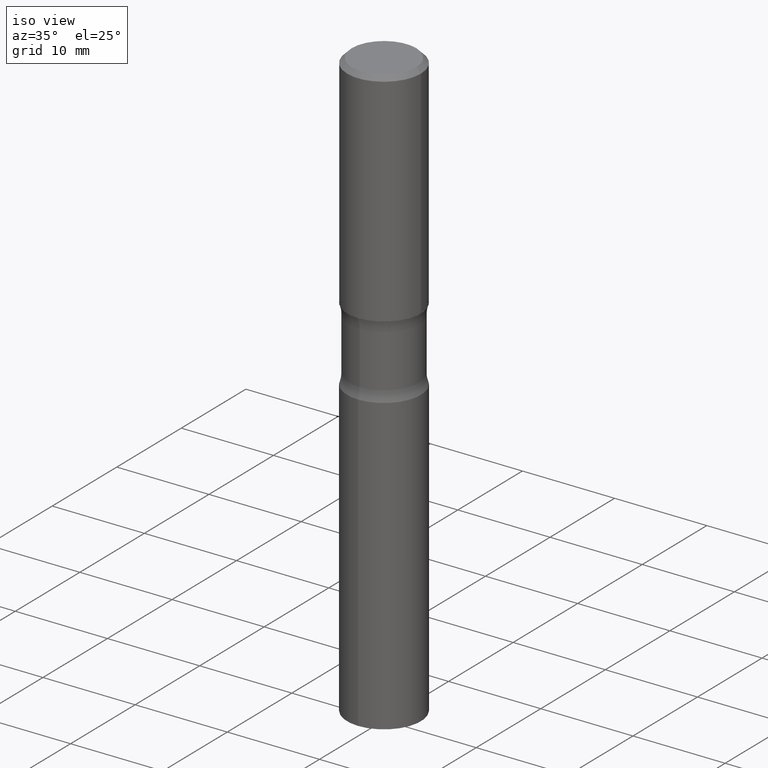
[diagram: clean part render]
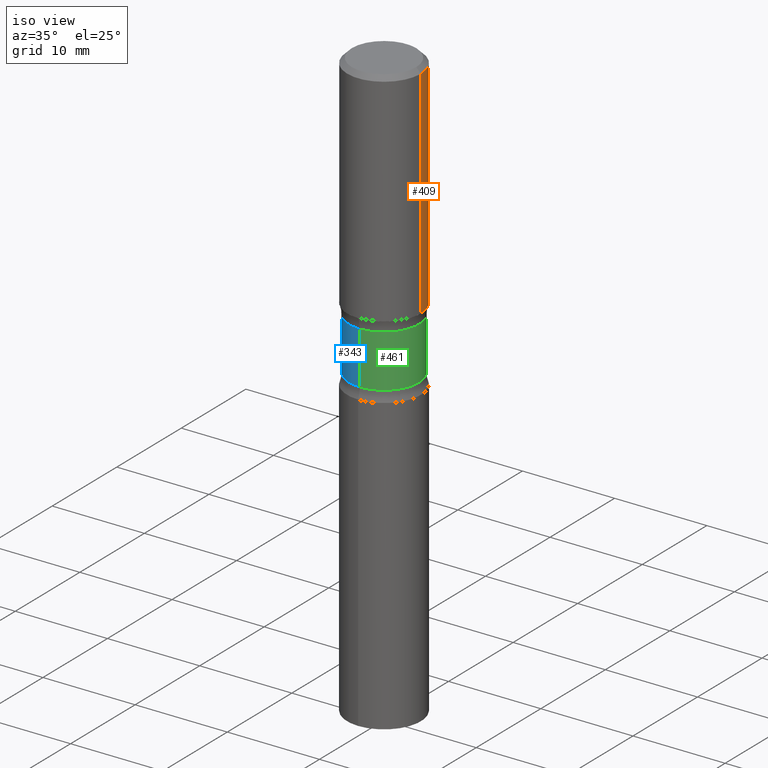
[diagram: same view with three faces highlighted in distinct colors, each labeled with its STEP entity id]
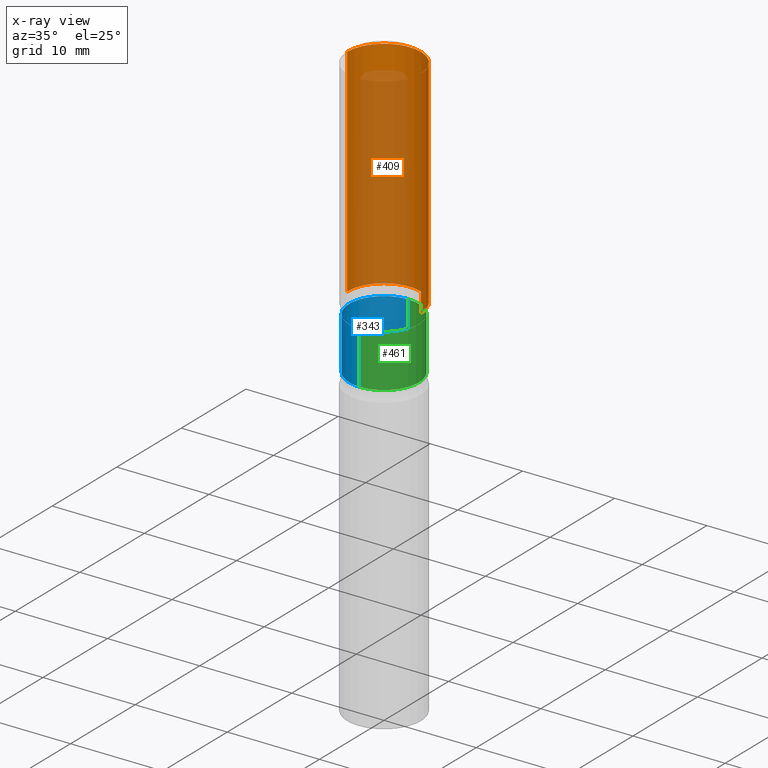
[diagram: x-ray of the same camera — body ghosted, the three highlighted faces saturated]
A machine part, iso view with three faces highlighted in distinct colors.
The next image is the same camera in x-ray (body ghosted, the three faces saturated) — at least one of them is partly hidden behind the body in this view.
Their STEP definitions:

[orange] entity #409 — the highlighted cylindrical surface (partial cylindrical patch) has radius 4.0005 mm, axis along (-0, 0, 1).
#3 = CARTESIAN_POINT ( 'NONE',  ( 0.000000000000000000, 0.000000000000000000, 0.000000000000000000 ) ) ;
#7 = FACE_OUTER_BOUND ( 'NONE', #183, .T. ) ;
#8 = EDGE_CURVE ( 'NONE', #312, #109, #9, .T. ) ;
#9 = CIRCLE ( 'NONE', #289, 0.1575000000000000011 ) ;
#16 = CARTESIAN_POINT ( 'NONE',  ( -0.1574999999999999178, 1.119104808822157209E-15, -7.747322767151472781E-30 ) ) ;
#18 = AXIS2_PLACEMENT_3D ( 'NONE', #3, #149, #310 ) ;
#33 = ORIENTED_EDGE ( 'NONE', *, *, #336, .F. ) ;
#59 = LINE ( 'NONE', #16, #500 ) ;
#60 = CARTESIAN_POINT ( 'NONE',  ( 0.1574999999999999178, -1.099816621735586494E-15, 7.679978421878595230E-30 ) ) ;
#79 = EDGE_CURVE ( 'NONE', #109, #337, #59, .T. ) ;
#85 = CARTESIAN_POINT ( 'NONE',  ( 2.310723474964335154E-29, -3.299100717072887606E-15, -0.9448999999999998511 ) ) ;
#88 = CARTESIAN_POINT ( 'NONE',  ( 4.890937612370281041E-31, -6.982962677686302702E-17, -0.02000000000000003511 ) ) ;
#109 = VERTEX_POINT ( 'NONE', #290 ) ;
#112 = ORIENTED_EDGE ( 'NONE', *, *, #481, .F. ) ;
#131 = CARTESIAN_POINT ( 'NONE',  ( 0.1574999999999998623, -1.150358061425878289E-15, -0.02000000000000003511 ) ) ;
#149 = DIRECTION ( 'NONE',  ( -2.445468806185136597E-29, 3.491481338843145583E-15, 1.000000000000000000 ) ) ;
#183 = EDGE_LOOP ( 'NONE', ( #256, #396, #33, #112 ) ) ;
#185 = DIRECTION ( 'NONE',  ( -2.445468806185136597E-29, 3.491481338843145583E-15, 1.000000000000000000 ) ) ;
#196 = DIRECTION ( 'NONE',  ( -2.445468806185136597E-29, 3.491481338843145583E-15, 1.000000000000000000 ) ) ;
#200 = DIRECTION ( 'NONE',  ( -2.445468806185136877E-29, 3.491481338843145188E-15, 1.000000000000000000 ) ) ;
#206 = DIRECTION ( 'NONE',  ( -2.445468806185136877E-29, 3.491481338843145188E-15, 1.000000000000000000 ) ) ;
#232 = DIRECTION ( 'NONE',  ( 1.000000000000000000, -6.982962677686266711E-15, 0.000000000000000000 ) ) ;
#240 = LINE ( 'NONE', #60, #505 ) ;
#256 = ORIENTED_EDGE ( 'NONE', *, *, #8, .T. ) ;
#274 = DIRECTION ( 'NONE',  ( 1.000000000000000000, -6.982962677686268288E-15, 0.000000000000000000 ) ) ;
#289 = AXIS2_PLACEMENT_3D ( 'NONE', #85, #196, #274 ) ;
#290 = CARTESIAN_POINT ( 'NONE',  ( -0.1575000000000000011, -5.653603631027165669E-16, -0.9448999999999998511 ) ) ;
#294 = VERTEX_POINT ( 'NONE', #131 ) ;
#310 = DIRECTION ( 'NONE',  ( 1.000000000000000000, -6.982962677686266711E-15, 4.876176775795935793E-29 ) ) ;
#312 = VERTEX_POINT ( 'NONE', #376 ) ;
#336 = EDGE_CURVE ( 'NONE', #294, #337, #478, .T. ) ;
#337 = VERTEX_POINT ( 'NONE', #487 ) ;
#376 = CARTESIAN_POINT ( 'NONE',  ( 0.1575000000000000011, -4.398917338808475087E-15, -0.9448999999999998511 ) ) ;
#394 = AXIS2_PLACEMENT_3D ( 'NONE', #88, #185, #232 ) ;
#396 = ORIENTED_EDGE ( 'NONE', *, *, #79, .T. ) ;
#409 = ADVANCED_FACE ( 'NONE', ( #7 ), #485, .T. ) ;
#478 = CIRCLE ( 'NONE', #394, 0.1574999999999998623 ) ;
#481 = EDGE_CURVE ( 'NONE', #312, #294, #240, .T. ) ;
#485 = CYLINDRICAL_SURFACE ( 'NONE', #18, 0.1574999999999999178 ) ;
#487 = CARTESIAN_POINT ( 'NONE',  ( -0.1574999999999998623, 1.029986994958722999E-15, -0.02000000000000003511 ) ) ;
#500 = VECTOR ( 'NONE', #200, 39.37007874015748143 ) ;
#505 = VECTOR ( 'NONE', #206, 39.37007874015748143 ) ;

[blue] entity #343 — the highlighted cylindrical surface (partial cylindrical patch) has radius 3.7846 mm, axis along (0, -0, -1).
#6 = AXIS2_PLACEMENT_3D ( 'NONE', #93, #446, #86 ) ;
#15 = CARTESIAN_POINT ( 'NONE',  ( 2.966320567988407078E-29, -4.246352965193348549E-15, -1.214592715817431445 ) ) ;
#30 = CARTESIAN_POINT ( 'NONE',  ( -1.022214201667896631E-15, -0.1490000000000088198, -2.519699999999999385 ) ) ;
#75 = VECTOR ( 'NONE', #127, 39.37007874015748143 ) ;
#77 = ORIENTED_EDGE ( 'NONE', *, *, #493, .F. ) ;
#86 = DIRECTION ( 'NONE',  ( 6.982962677686265922E-15, 1.000000000000000000, -3.666910058609747285E-15 ) ) ;
#91 = CARTESIAN_POINT ( 'NONE',  ( -1.051371318158463896E-15, -0.1490000000000034908, -0.9902072841825673155 ) ) ;
#93 = CARTESIAN_POINT ( 'NONE',  ( 6.186738479725476858E-29, -8.761840589176683517E-15, -2.519699999999999829 ) ) ;
#101 = EDGE_CURVE ( 'NONE', #140, #503, #356, .T. ) ;
#107 = ORIENTED_EDGE ( 'NONE', *, *, #252, .T. ) ;
#124 = CYLINDRICAL_SURFACE ( 'NONE', #6, 0.1490000000000000768 ) ;
#126 = CARTESIAN_POINT ( 'NONE',  ( 2.412638221772428417E-29, -3.470010934289741969E-15, -0.9902072841825678706 ) ) ;
#127 = DIRECTION ( 'NONE',  ( 2.467550331507132163E-29, -3.459859337779677518E-15, -1.000000000000000000 ) ) ;
#129 = CARTESIAN_POINT ( 'NONE',  ( 1.040461438975277855E-15, 0.1489999999999965519, -0.9902072841825684257 ) ) ;
#140 = VERTEX_POINT ( 'NONE', #129 ) ;
#143 = ORIENTED_EDGE ( 'NONE', *, *, #329, .F. ) ;
#151 = ORIENTED_EDGE ( 'NONE', *, *, #101, .T. ) ;
#153 = CARTESIAN_POINT ( 'NONE',  ( -1.051371318158457585E-15, -0.1490000000000043789, -1.214592715817431001 ) ) ;
#163 = VECTOR ( 'NONE', #408, 39.37007874015748143 ) ;
#167 = LINE ( 'NONE', #30, #75 ) ;
#204 = CARTESIAN_POINT ( 'NONE',  ( 1.040461438975284166E-15, 0.1489999999999958580, -1.214592715817432111 ) ) ;
#224 = CIRCLE ( 'NONE', #497, 0.1490000000000001046 ) ;
#252 = EDGE_CURVE ( 'NONE', #436, #140, #314, .T. ) ;
#280 = DIRECTION ( 'NONE',  ( 6.982962677686265922E-15, 1.000000000000000000, -3.666910058609748863E-15 ) ) ;
#314 = CIRCLE ( 'NONE', #366, 0.1490000000000000213 ) ;
#317 = FACE_OUTER_BOUND ( 'NONE', #441, .T. ) ;
#319 = DIRECTION ( 'NONE',  ( 6.982962677686265922E-15, 1.000000000000000000, -3.666910058609746496E-15 ) ) ;
#329 = EDGE_CURVE ( 'NONE', #426, #503, #224, .T. ) ;
#343 = ADVANCED_FACE ( 'NONE', ( #317 ), #124, .T. ) ;
#353 = CARTESIAN_POINT ( 'NONE',  ( 1.040461438975315918E-15, 0.1489999999999913061, -2.519700000000000273 ) ) ;
#356 = LINE ( 'NONE', #353, #163 ) ;
#366 = AXIS2_PLACEMENT_3D ( 'NONE', #126, #405, #280 ) ;
#405 = DIRECTION ( 'NONE',  ( 2.467550331507131883E-29, -3.459859337779677518E-15, -1.000000000000000000 ) ) ;
#408 = DIRECTION ( 'NONE',  ( 2.467550331507132163E-29, -3.459859337779677518E-15, -1.000000000000000000 ) ) ;
#426 = VERTEX_POINT ( 'NONE', #153 ) ;
#436 = VERTEX_POINT ( 'NONE', #91 ) ;
#441 = EDGE_LOOP ( 'NONE', ( #77, #107, #151, #143 ) ) ;
#446 = DIRECTION ( 'NONE',  ( 2.467550331507131883E-29, -3.459859337779677518E-15, -1.000000000000000000 ) ) ;
#476 = DIRECTION ( 'NONE',  ( 2.467550331507131883E-29, -3.459859337779677518E-15, -1.000000000000000000 ) ) ;
#493 = EDGE_CURVE ( 'NONE', #436, #426, #167, .T. ) ;
#497 = AXIS2_PLACEMENT_3D ( 'NONE', #15, #476, #319 ) ;
#503 = VERTEX_POINT ( 'NONE', #204 ) ;

[green] entity #461 — the highlighted cylindrical surface (partial cylindrical patch) has radius 3.7846 mm, axis along (0, -0, -1).
#11 = CARTESIAN_POINT ( 'NONE',  ( 2.966320567988407078E-29, -4.246352965193348549E-15, -1.214592715817431445 ) ) ;
#22 = DIRECTION ( 'NONE',  ( 6.982962677686265922E-15, 1.000000000000000000, -3.666910058609748863E-15 ) ) ;
#30 = CARTESIAN_POINT ( 'NONE',  ( -1.022214201667896631E-15, -0.1490000000000088198, -2.519699999999999385 ) ) ;
#75 = VECTOR ( 'NONE', #127, 39.37007874015748143 ) ;
#91 = CARTESIAN_POINT ( 'NONE',  ( -1.051371318158463896E-15, -0.1490000000000034908, -0.9902072841825673155 ) ) ;
#99 = AXIS2_PLACEMENT_3D ( 'NONE', #11, #114, #117 ) ;
#101 = EDGE_CURVE ( 'NONE', #140, #503, #356, .T. ) ;
#114 = DIRECTION ( 'NONE',  ( 2.467550331507131883E-29, -3.459859337779677518E-15, -1.000000000000000000 ) ) ;
#117 = DIRECTION ( 'NONE',  ( 6.982962677686265922E-15, 1.000000000000000000, -3.666910058609746496E-15 ) ) ;
#122 = DIRECTION ( 'NONE',  ( 2.467550331507131883E-29, -3.459859337779677518E-15, -1.000000000000000000 ) ) ;
#127 = DIRECTION ( 'NONE',  ( 2.467550331507132163E-29, -3.459859337779677518E-15, -1.000000000000000000 ) ) ;
#129 = CARTESIAN_POINT ( 'NONE',  ( 1.040461438975277855E-15, 0.1489999999999965519, -0.9902072841825684257 ) ) ;
#139 = EDGE_CURVE ( 'NONE', #140, #436, #225, .T. ) ;
#140 = VERTEX_POINT ( 'NONE', #129 ) ;
#153 = CARTESIAN_POINT ( 'NONE',  ( -1.051371318158457585E-15, -0.1490000000000043789, -1.214592715817431001 ) ) ;
#162 = DIRECTION ( 'NONE',  ( 6.982962677686265922E-15, 1.000000000000000000, -3.666910058609747285E-15 ) ) ;
#163 = VECTOR ( 'NONE', #408, 39.37007874015748143 ) ;
#167 = LINE ( 'NONE', #30, #75 ) ;
#204 = CARTESIAN_POINT ( 'NONE',  ( 1.040461438975284166E-15, 0.1489999999999958580, -1.214592715817432111 ) ) ;
#209 = CYLINDRICAL_SURFACE ( 'NONE', #251, 0.1490000000000000768 ) ;
#217 = CIRCLE ( 'NONE', #99, 0.1490000000000001046 ) ;
#225 = CIRCLE ( 'NONE', #304, 0.1490000000000000213 ) ;
#234 = ORIENTED_EDGE ( 'NONE', *, *, #139, .T. ) ;
#242 = FACE_OUTER_BOUND ( 'NONE', #341, .T. ) ;
#251 = AXIS2_PLACEMENT_3D ( 'NONE', #406, #449, #162 ) ;
#271 = ORIENTED_EDGE ( 'NONE', *, *, #493, .T. ) ;
#304 = AXIS2_PLACEMENT_3D ( 'NONE', #359, #122, #22 ) ;
#341 = EDGE_LOOP ( 'NONE', ( #234, #271, #375, #508 ) ) ;
#353 = CARTESIAN_POINT ( 'NONE',  ( 1.040461438975315918E-15, 0.1489999999999913061, -2.519700000000000273 ) ) ;
#356 = LINE ( 'NONE', #353, #163 ) ;
#359 = CARTESIAN_POINT ( 'NONE',  ( 2.412638221772428417E-29, -3.470010934289741969E-15, -0.9902072841825678706 ) ) ;
#374 = EDGE_CURVE ( 'NONE', #503, #426, #217, .T. ) ;
#375 = ORIENTED_EDGE ( 'NONE', *, *, #374, .F. ) ;
#406 = CARTESIAN_POINT ( 'NONE',  ( 6.186738479725476858E-29, -8.761840589176683517E-15, -2.519699999999999829 ) ) ;
#408 = DIRECTION ( 'NONE',  ( 2.467550331507132163E-29, -3.459859337779677518E-15, -1.000000000000000000 ) ) ;
#426 = VERTEX_POINT ( 'NONE', #153 ) ;
#436 = VERTEX_POINT ( 'NONE', #91 ) ;
#449 = DIRECTION ( 'NONE',  ( 2.467550331507131883E-29, -3.459859337779677518E-15, -1.000000000000000000 ) ) ;
#461 = ADVANCED_FACE ( 'NONE', ( #242 ), #209, .T. ) ;
#493 = EDGE_CURVE ( 'NONE', #436, #426, #167, .T. ) ;
#503 = VERTEX_POINT ( 'NONE', #204 ) ;
#508 = ORIENTED_EDGE ( 'NONE', *, *, #101, .F. ) ;